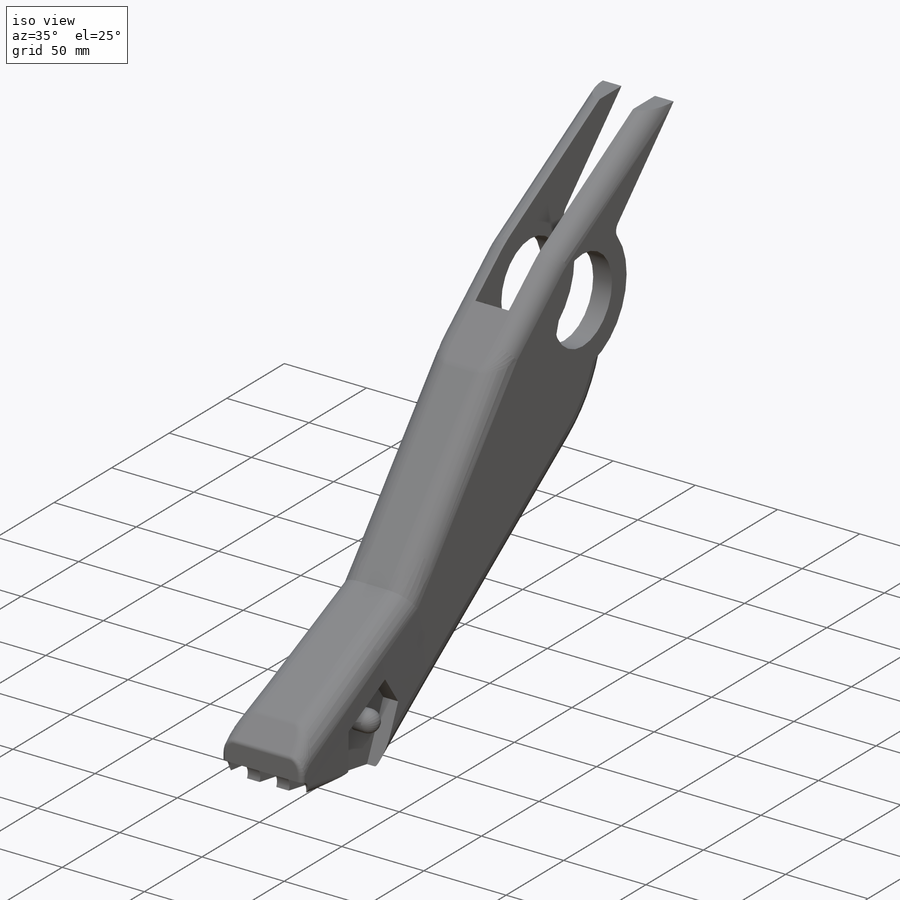
[diagram: iso view]
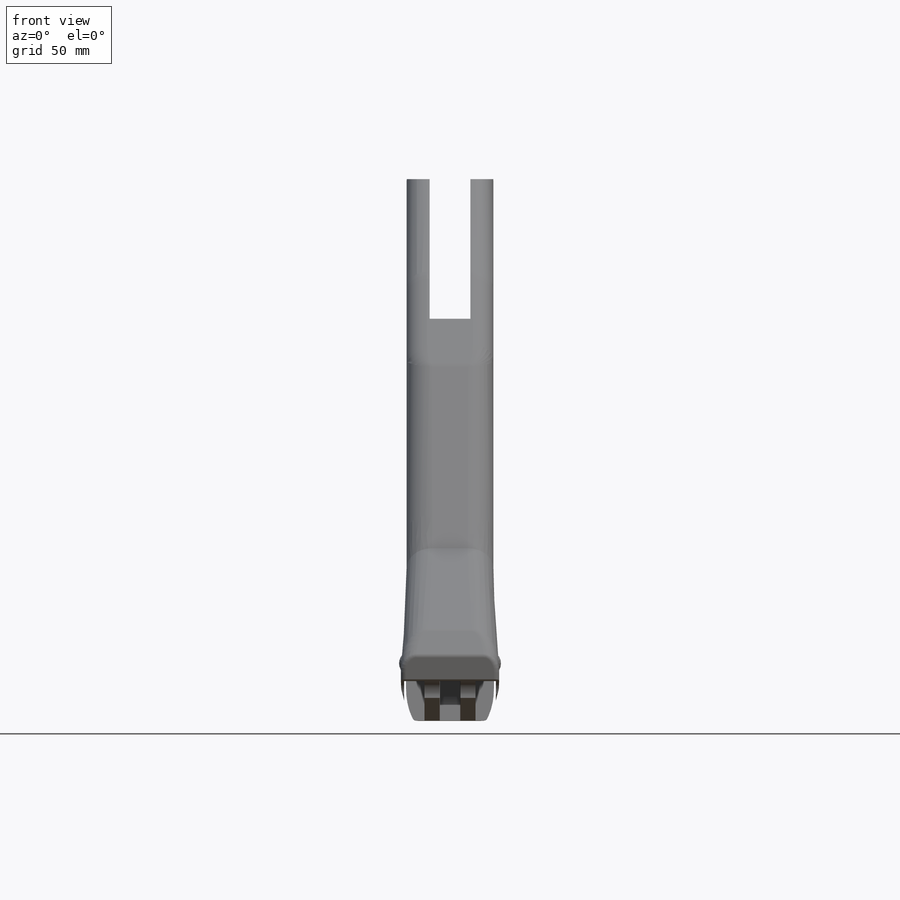
[diagram: front view]
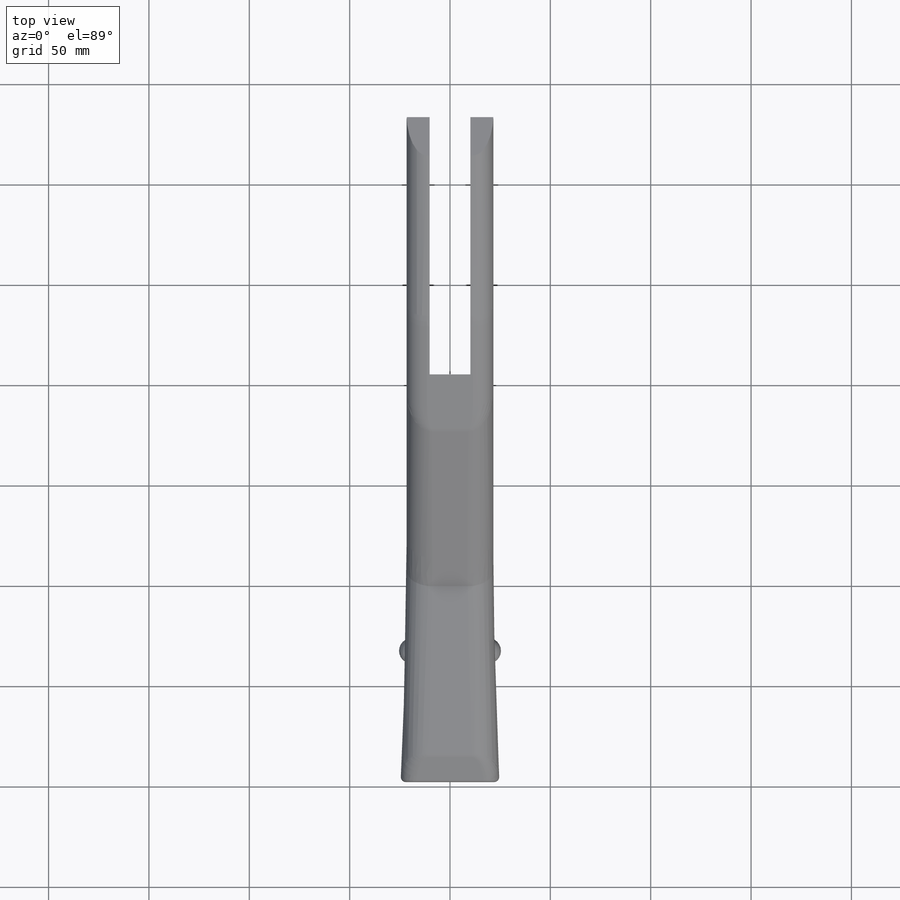
[diagram: top view]
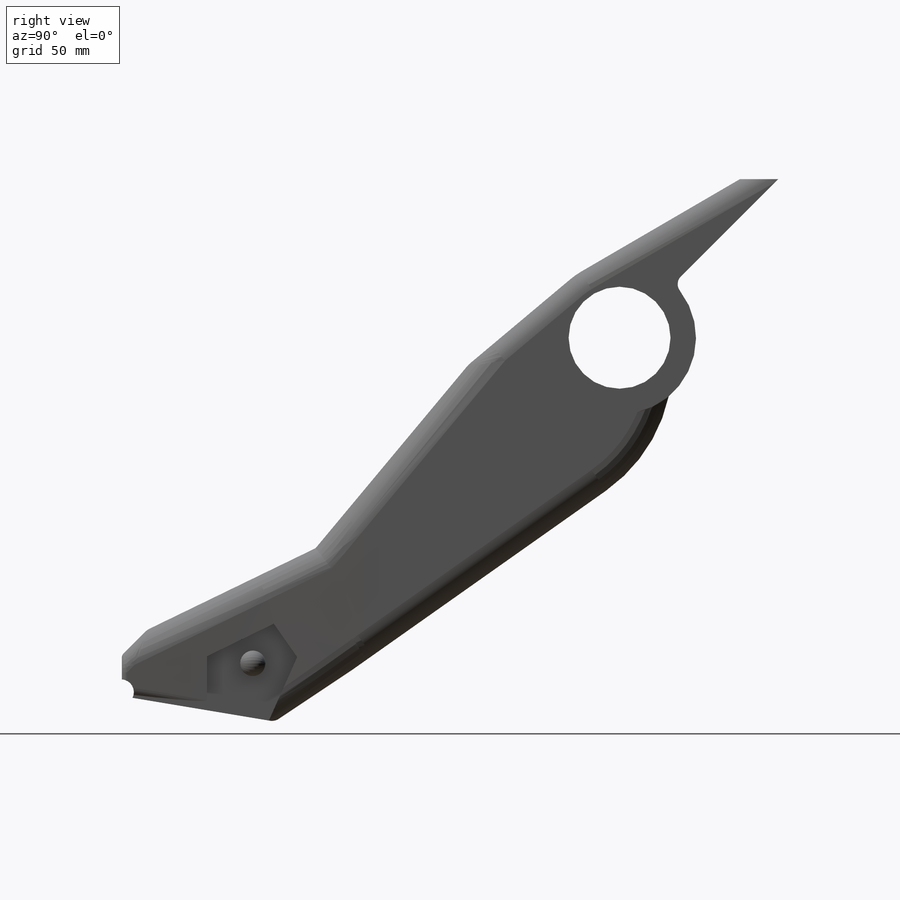
[diagram: right view]
SOLIDWORKS PART (.sldprt)
format: sldprt  version: not decoded by parser v0  size: 784,896 bytes
history: native  units: mm
features: fillet x9, sketch x7, extrude x3, cut_extrude x3, material x1, plane x1, chamfer x1, pattern_linear x1 (+13 scaffold rows collapsed)
feature tree (39):
  scaffold x13  (default folders/planes/origin — collapsed)
  material  "Material <not specified>"
  sketch  "Sketch1"  dims[c1.D1=50.8mm c1.D6=38.1mm c1.D2=111.76mm c1.D3=31.75mm c2.D3=45.0deg c2.D4=68.58mm c2.D5=19.05mm c2.D6=88.9mm]
  extrude  "Boss-Extrude1"  Depth=43.18mm
  sketch  "Sketch2"  dims[c1.D1=31.75mm c2.D1=130.0deg c2.D2=50.8mm c2.D3=76.2mm c2.D4=91.44mm c2.D5=152.4mm c2.D6=40.64mm c2.D7=12.7mm c2.D8=12.7mm c2.D9=20.32mm c2.D10=12.7mm c2.D11=76.2mm c2.D12=63.5mm c2.D13=15.24mm c2.D14=38.1mm c2.D15=~31.969696mm c2.D16=~49.736018mm c3.D15=38.1mm c3.D16=88.9mm c3.D5=83.82mm c3.D12=38.1mm c3.D13=25.4mm c3.D14=46.99mm c4.D15=127.0mm]
  extrude  "Boss-Extrude2"  Depth=76.2mm
  plane  "Plane1"  Offset=91.44mm
  sketch  "Sketch3"  dims[D1=20.32mm D2=127.0mm D3=431.8mm D4=152.4mm]
  cut_extrude  "Cut-Extrude1"  [1 undecoded]
  chamfer  "Chamfer1"  Distance=10.16mm Angle=20deg
  fillet  "Fillet6"  Radius=10.16mm
  fillet  "Fillet7"  Radius=12.7mm
  fillet  "Fillet8"  Radius=12.7mm
  fillet  "Fillet9"  Radius=7.62mm
  fillet  "Fillet10"  Radius=2.54mm
  fillet  "Fillet11"  Radius=5.08mm
  fillet  "Fillet15"  Radius=6.35mm
  sketch  "Sketch5"  dims[D4=12.7mm D1=81.28mm D2=25.4mm D3=17.78mm]
  sketch  "Sketch6"  dims[c1.D1=20.32mm c1.D2=50.8mm c1.D3=~148.987899mm c2.D3=40.0deg c2.D4=34.29mm]
  cut_extrude  "Cut-Extrude2"  Depth=10.16mm
  pattern_linear  "LPattern1"  Count1=2 Count2=2 Spacing1=17.78mm Spacing2=17.78mm
  sketch  "Sketch8"
  extrude  "Boss-Extrude4"  Depth=50.8mm
  fillet  "Fillet16"  Radius=6.35mm
  sketch  "Sketch9"  dims[D1=12.7mm]
  cut_extrude  "Cut-Extrude3"  Depth=2.54mm
  fillet  "Fillet17"  Radius=38.1mm
decode coverage: 22 of 24 modeling features carry decoded parameters
note: ~ marks probable driven/reference dimensions
note: 1 parameter value undecoded
note: suppression state not decoded; provenance and decode notes live in map.json
